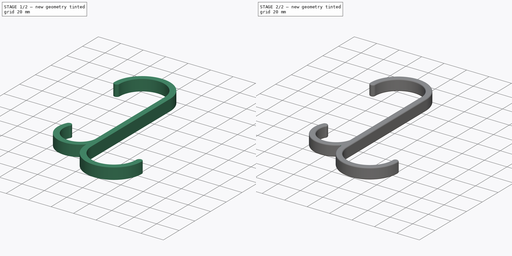
[diagram: build sequence overview — one tinted view per stage of 2, left to right]
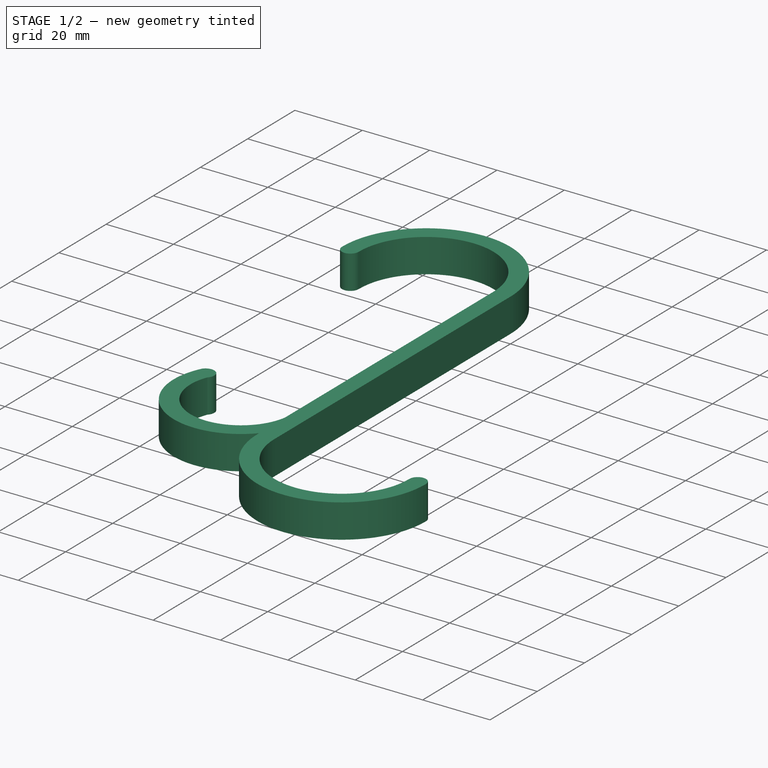
[diagram: stage 1 of 2 — iso view after this stage's code; geometry added in this stage tinted green]
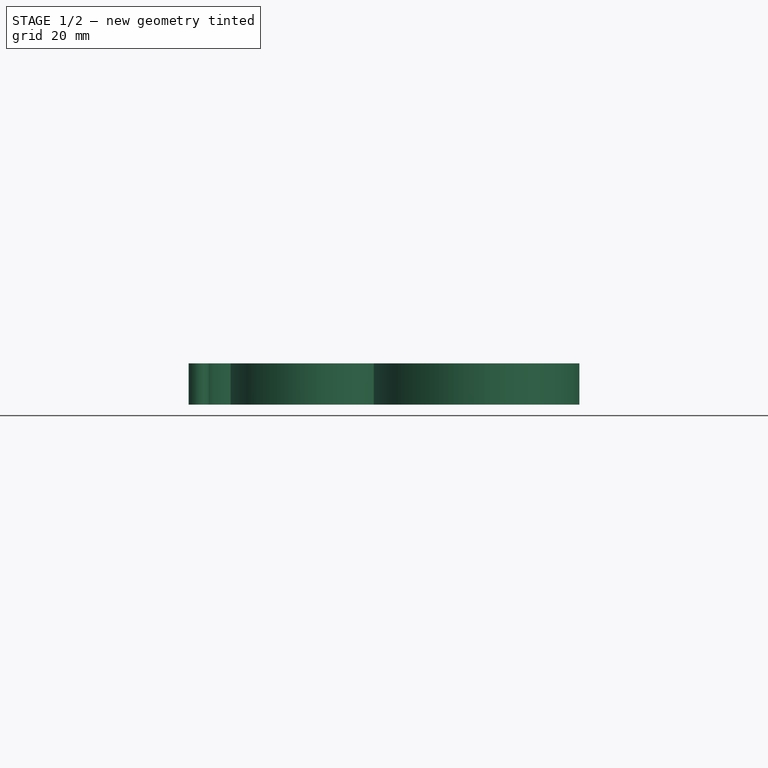
[diagram: stage 1 of 2 — front view after this stage's code; geometry added in this stage tinted green]
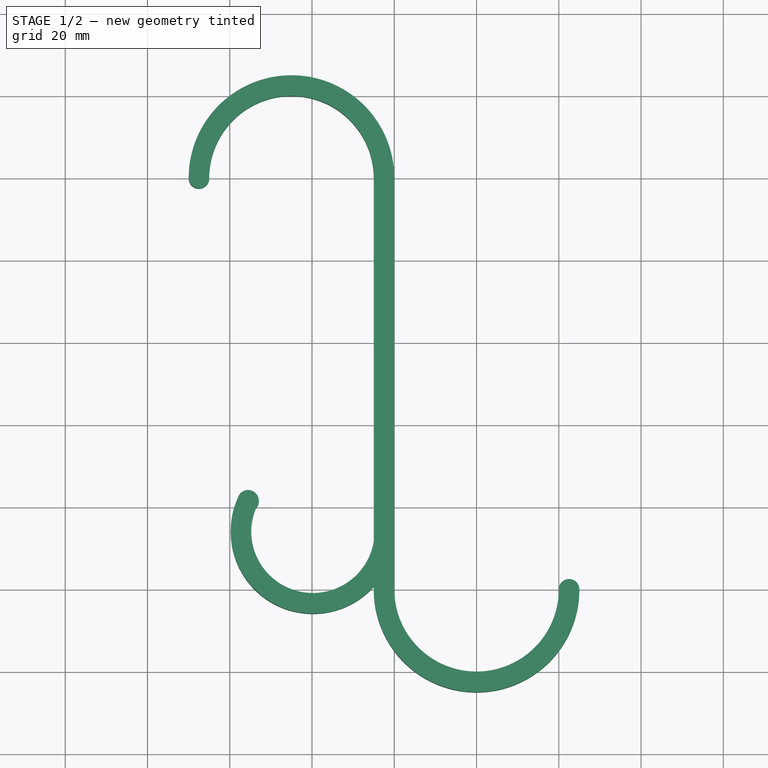
[diagram: stage 1 of 2 — top view after this stage's code; geometry added in this stage tinted green]
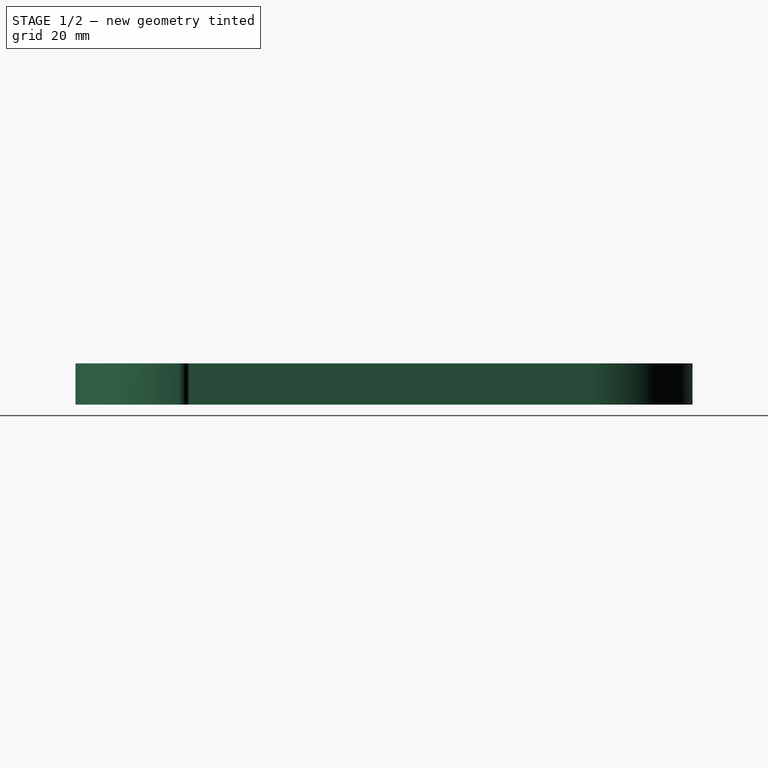
[diagram: stage 1 of 2 — right view after this stage's code; geometry added in this stage tinted green]
FCSTD DOCUMENT  (FreeCAD 1.0R38806 (Git))
Label: proj
License: All rights reserved
LicenseURL: https://en.wikipedia.org/wiki/All_rights_reserved
objects: Sketcher::SketchObject×1, PartDesign::Pad×1, PartDesign::Fillet×1, PartDesign::Body×1
note: 9 computed .brp shape members not serialized (recipe doc carries the construction recipe); baked Part::Feature solids carry a one-line shape summary decoded from their .brp

FEATURE [Sketcher::SketchObject] Sketch
  ArcFitTolerance = 1e-06
  AttachmentSupport = -> [XY_Plane]
  FullyConstrained = true
  MakeInternals = false
  MapMode = 5
  sketch-geometry (14):
    g0: ArcOfCircle CenterX=-25 CenterY=0 CenterZ=0 NormalX=0 NormalY=0 NormalZ=1 AngleXU=0 Radius=25 StartAngle=0 EndAngle=3.14159
    g1: ArcOfCircle CenterX=-25 CenterY=0 CenterZ=0 NormalX=0 NormalY=0 NormalZ=1 AngleXU=0 Radius=20 StartAngle=0 EndAngle=3.14159
    g2: ArcOfCircle CenterX=-47.5 CenterY=0 CenterZ=0 NormalX=0 NormalY=0 NormalZ=1 AngleXU=0 Radius=2.5 StartAngle=3.14159 EndAngle=6.28319
    g3: LineSegment StartX=0 StartY=0 StartZ=0 EndX=0 EndY=-50 EndZ=0
    g4: LineSegment StartX=-5 StartY=0 StartZ=0 EndX=-5 EndY=-50 EndZ=0
    g5: ArcOfCircle CenterX=20 CenterY=-100 CenterZ=0 NormalX=0 NormalY=0 NormalZ=1 AngleXU=0 Radius=25 StartAngle=3.14159 EndAngle=6.28319
    g6: ArcOfCircle CenterX=20 CenterY=-100 CenterZ=0 NormalX=0 NormalY=0 NormalZ=1 AngleXU=0 Radius=20 StartAngle=3.14159 EndAngle=6.28319
    g7: ArcOfCircle CenterX=42.5 CenterY=-100 CenterZ=0 NormalX=0 NormalY=0 NormalZ=1 AngleXU=0 Radius=2.5 StartAngle=3.3373e-08 EndAngle=3.14159
    g8: LineSegment StartX=-5 StartY=-100 StartZ=0 EndX=-5 EndY=-50 EndZ=0
    g9: LineSegment StartX=0 StartY=-100 StartZ=0 EndX=0 EndY=-50 EndZ=0
    g10: ArcOfCircle CenterX=-19.7831 CenterY=-85.9022 CenterZ=0 NormalX=0 NormalY=0 NormalZ=1 AngleXU=0 Radius=20 StartAngle=2.67783 EndAngle=6.13576
    g11: ArcOfCircle CenterX=-19.7831 CenterY=-85.9022 CenterZ=0 NormalX=0 NormalY=0 NormalZ=1 AngleXU=0 Radius=15 StartAngle=2.76028 EndAngle=6.45347
    g12: ArcOfCircle CenterX=-35.5399 CenterY=-78.4632 CenterZ=0 NormalX=0 NormalY=0 NormalZ=1 AngleXU=0 Radius=2.61 StartAngle=5.49164 EndAngle=8.80904
    g13: LineSegment StartX=-3.6e-15 StartY=-88.84 StartZ=0 EndX=-5 EndY=-83.3602 EndZ=0
  constraints (48):
    c: PointOnObject(g0,g-1)
    c: PointOnObject(g0,g-1)
    c: PointOnObject(g0,g-1)
    c: PointOnObject(g0,g-2)
    c: Coincident(g1,g0)
    c: PointOnObject(g1,g-1)
    c: PointOnObject(g1,g-1)
    c: Radius(g1) = 20
    c: Radius(g0) = 25
    c: PointOnObject(g2,g-1)
    c: Coincident(g2,g1)
    c: Coincident(g2,g0)
    c: Coincident(g4,g1)
    c: Vertical(g4)
    c: Parallel(g4,g3)
    c: Coincident(g3,g0)
    c: DistanceY(g4,g4) = 50
    c: Equal(g3,g4)
    c: Coincident(g6,g5)
    c: Radius(g6) = 20
    c: Radius(g5) = 25
    c: Coincident(g7,g6)
    c: Coincident(g7,g5)
    c: Coincident(g9,g6)
    c: Vertical(g9)
    c: Parallel(g9,g8)
    c: Coincident(g8,g5)
    c: Equal(g8,g9)
    c: Coincident(g8,g4)
    c: Coincident(g9,g3)
    c: Equal(g8,g4)
    c: Horizontal(g7,g6)
    c: Horizontal(g6,g6)
    c: Radius(g7) = 2.5
    c: PointOnObject(g10,g9)
    c: Coincident(g11,g10)
    c: PointOnObject(g11,g8)
    c: Radius(g10) = 20
    c: Radius(g11) = 15
    c: Coincident(g12,g10)
    c: Coincident(g12,g11)
    c: Radius(g12) = 2.61
    c: DistanceY(g6,g10) = 11.16
    c: Distance(g12,g5) = 37.37
    c: Distance(g10,g6) = 44.16
    c: Coincident(g13,g10)
    c: Coincident(g13,g11)
    c: Distance(g11,g12) = 30.93
FEATURE [PartDesign::Pad] Pad
  Direction = (0,0,1)
  Length = 10
  Length2 = 10
  Profile = -> Sketch
  ReferenceAxis = -> Sketch [N_Axis]
  Refine = true
  Suppressed = false
  Type = 0
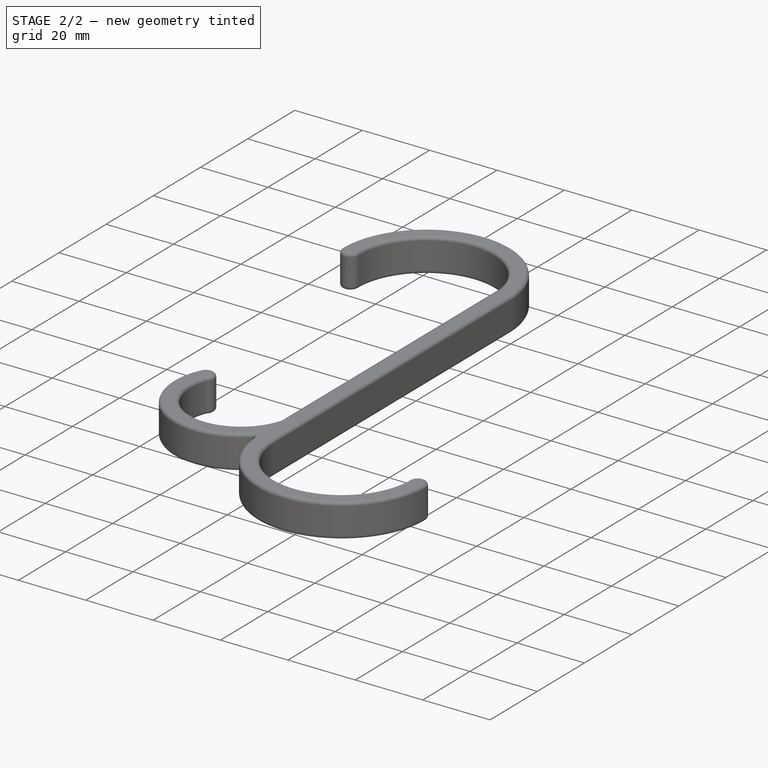
[diagram: stage 2 of 2 — iso view after this stage's code; geometry added in this stage tinted green]
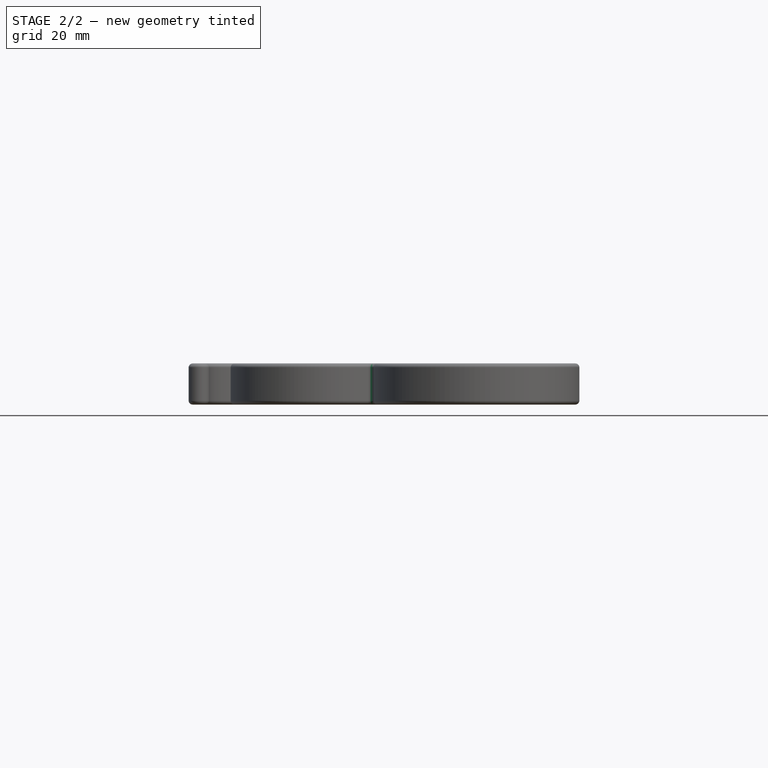
[diagram: stage 2 of 2 — front view after this stage's code; geometry added in this stage tinted green]
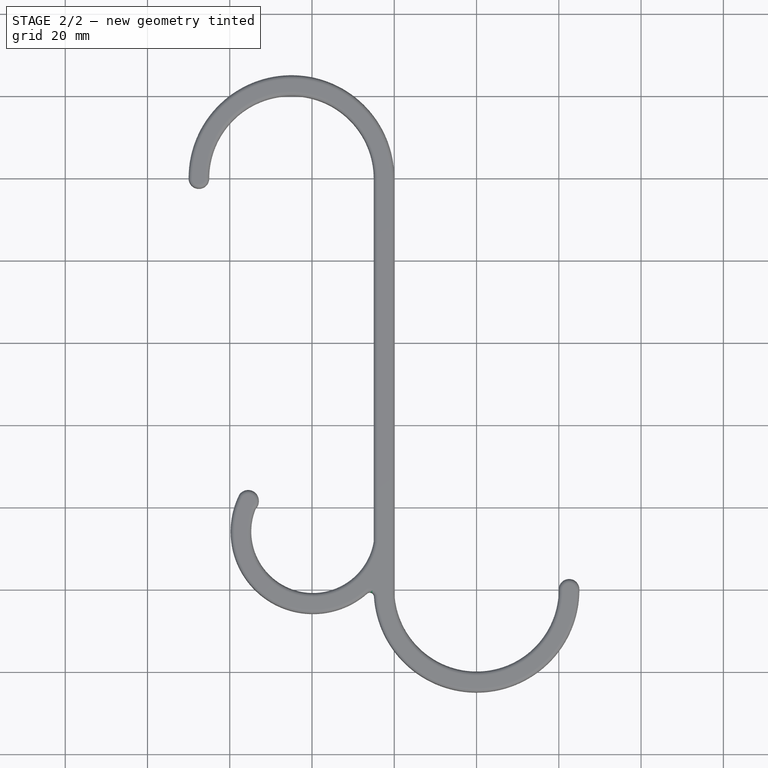
[diagram: stage 2 of 2 — top view after this stage's code; geometry added in this stage tinted green]
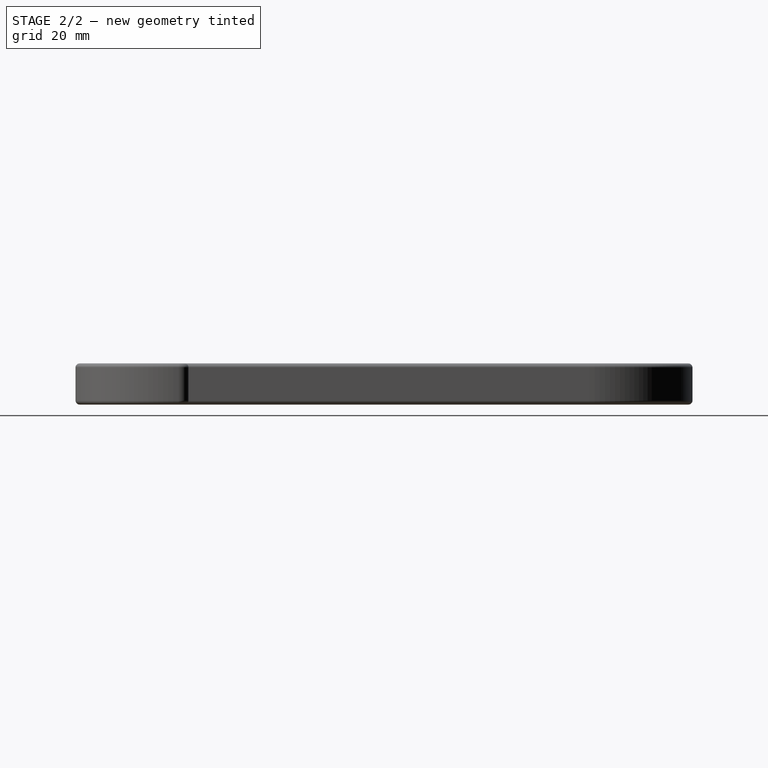
[diagram: stage 2 of 2 — right view after this stage's code; geometry added in this stage tinted green]
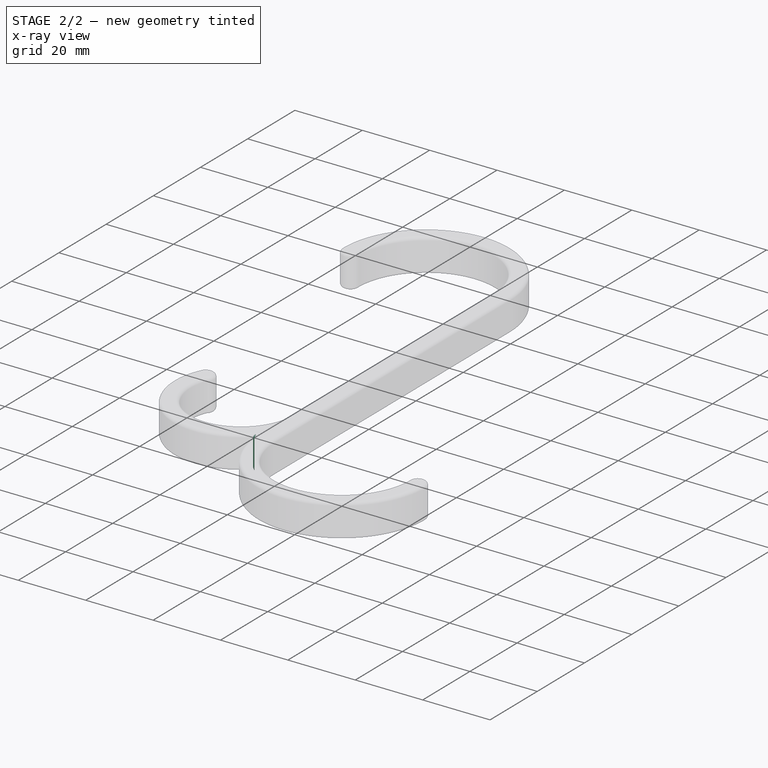
[diagram: stage 2 of 2 — x-ray composite at the iso view; earlier geometry ghosted, this stage's added geometry solid]
FEATURE [PartDesign::Fillet] Fillet
  Base = -> Pad [Edge25,Edge26,Edge27,Edge28,Edge29,Edge30,Edge31,Edge32,Edge33,Edge34,?Edge11,?Edge12,?Edge13,?Edge14,?Edge15,?Edge16,?Edge17,Edge6,Edge7,Edge8,Edge9,Edge10,Edge11,Edge12,Edge13,Edge14,Edge15,Edge16,Edge17,Edge18,?Edge31,Edge20,Edge21,Edge22,Edge23,Edge24]
  BaseFeature = -> Pad
  Radius = 1
  Refine = true
  SupportTransform = false
  Suppressed = false
  UseAllEdges = true
FEATURE [PartDesign::Body] Body
  AllowCompound = false
  Group = -> [Sketch,Pad,Fillet]
  Origin = -> Origin
  Tip = -> Fillet
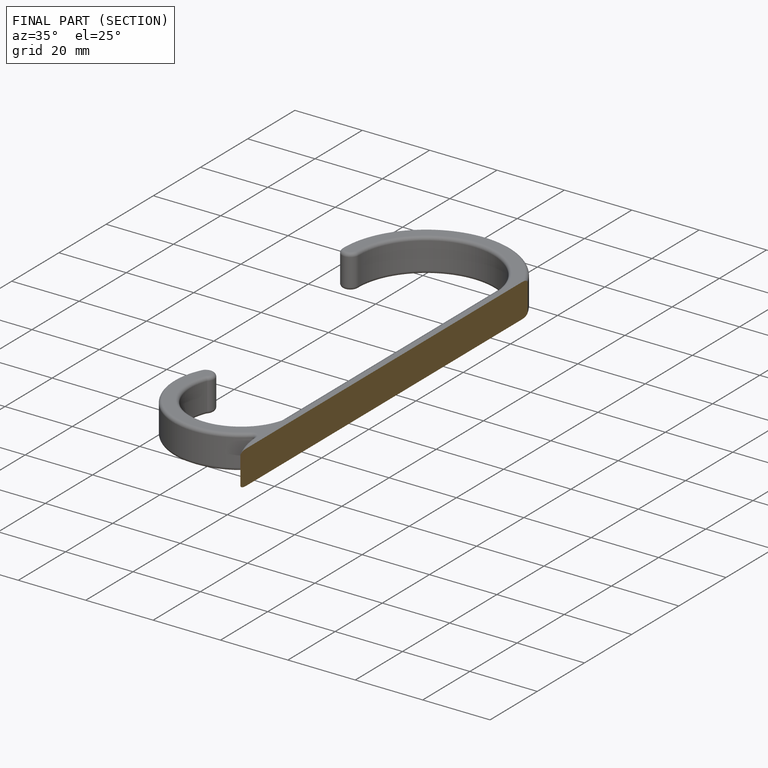
[diagram: finished part — half-section view (interior)]
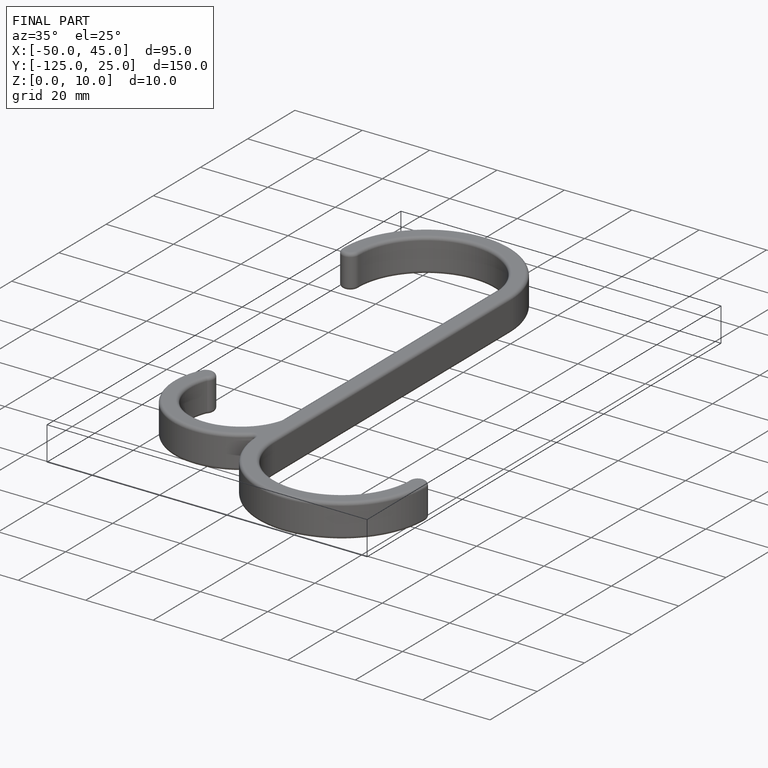
[diagram: finished part — iso view with bounding-box wireframe]
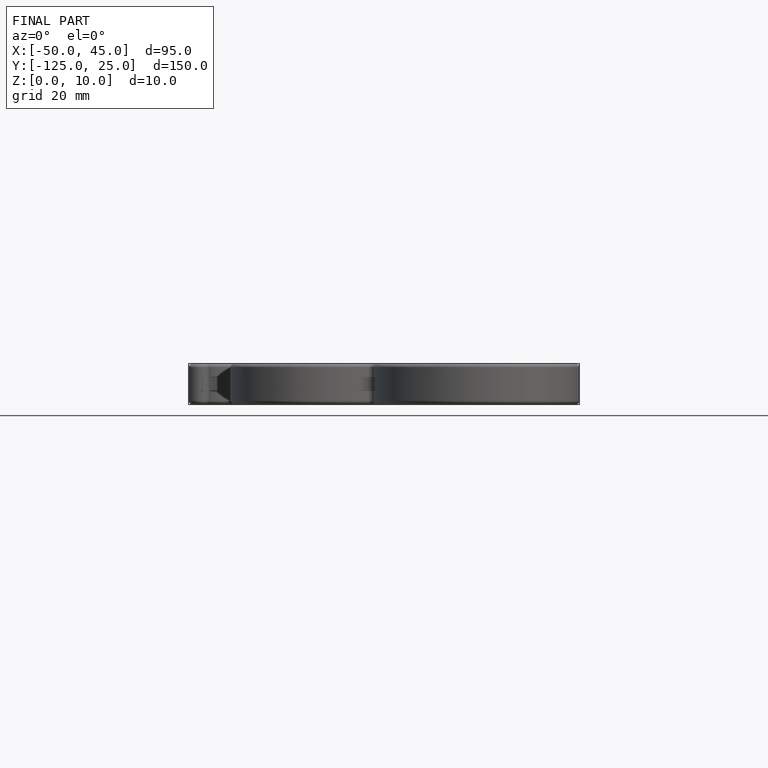
[diagram: finished part — front view with bounding-box wireframe]
